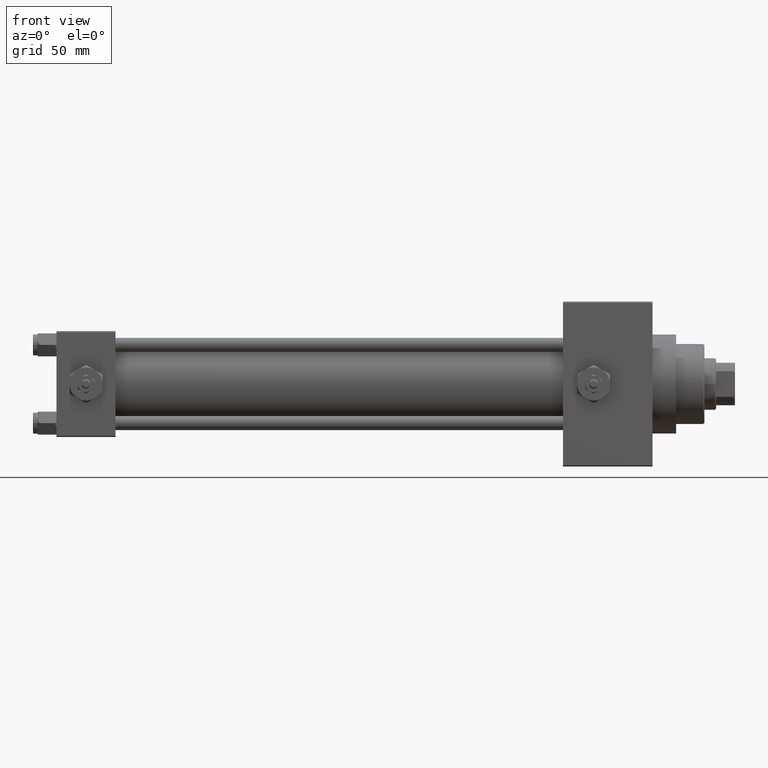
[diagram: clean part render]
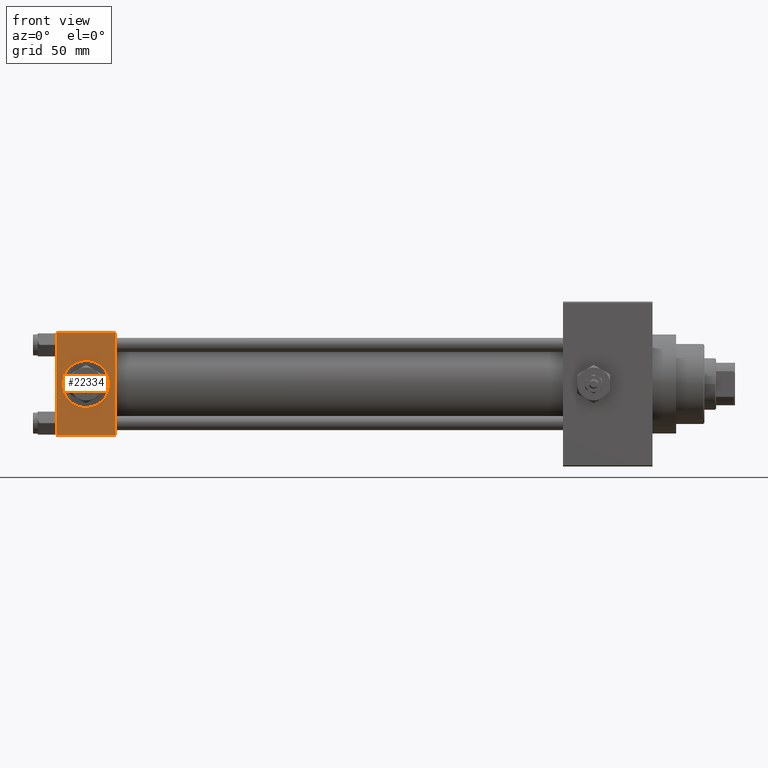
[diagram: same view with one face highlighted and labeled with its STEP entity id]
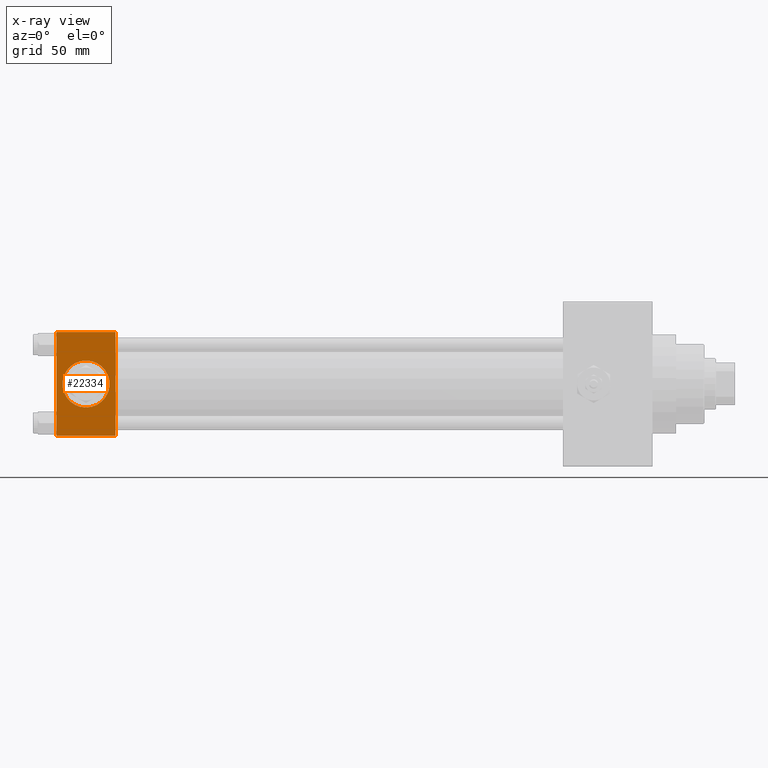
[diagram: x-ray of the same camera — body ghosted, the highlighted face saturated]
A machine part, front view. The second image highlights one B-rep face of the part: STEP entity #22334.
The next image is the same camera in x-ray: the body ghosted, the highlighted face saturated — about 0% of this face is hidden behind the body in this view.
In plain terms, the highlighted planar face has unit normal (0, 1, 0).
Its self-contained STEP definition (entity closure, byte-faithful):
#226 = DIRECTION ( 'NONE',  ( 0.000000000000000000, -1.000000000000000000, -8.673617379884036705E-17 ) ) ;
#834 = CARTESIAN_POINT ( 'NONE',  ( 0.000000000000000000, -22.50000000000000000, 22.00000000000000000 ) ) ;
#1727 = VECTOR ( 'NONE', #29714, 1000.000000000000000 ) ;
#3353 = AXIS2_PLACEMENT_3D ( 'NONE', #11284, #45309, #48279 ) ;
#3461 = DIRECTION ( 'NONE',  ( -1.000000000000000000, 0.000000000000000000, 0.000000000000000000 ) ) ;
#4487 = AXIS2_PLACEMENT_3D ( 'NONE', #7520, #29358, #22384 ) ;
#4924 = ORIENTED_EDGE ( 'NONE', *, *, #28466, .T. ) ;
#5412 = EDGE_LOOP ( 'NONE', ( #29977, #20588, #9239, #4924 ) ) ;
#7520 = CARTESIAN_POINT ( 'NONE',  ( 25.00000000000000000, -22.50000000000000000, 22.50000000000000000 ) ) ;
#9239 = ORIENTED_EDGE ( 'NONE', *, *, #14112, .F. ) ;
#9253 = VERTEX_POINT ( 'NONE', #45570 ) ;
#10691 = VECTOR ( 'NONE', #18306, 1000.000000000000000 ) ;
#11008 = VERTEX_POINT ( 'NONE', #46278 ) ;
#11284 = CARTESIAN_POINT ( 'NONE',  ( 12.50000000000000000, -22.50000000000000000, 0.000000000000000000 ) ) ;
#14112 = EDGE_CURVE ( 'NONE', #11008, #9253, #43410, .T. ) ;
#14341 = CARTESIAN_POINT ( 'NONE',  ( 0.000000000000000000, -22.50000000000000000, 22.50000000000000000 ) ) ;
#14350 = ORIENTED_EDGE ( 'NONE', *, *, #42655, .F. ) ;
#14558 = CARTESIAN_POINT ( 'NONE',  ( 25.00000000000000000, -22.50000000000000000, -21.99999999999998579 ) ) ;
#14583 = VERTEX_POINT ( 'NONE', #20190 ) ;
#15352 = EDGE_CURVE ( 'NONE', #32963, #41480, #48356, .T. ) ;
#16921 = EDGE_CURVE ( 'NONE', #38109, #14583, #32984, .T. ) ;
#17107 = AXIS2_PLACEMENT_3D ( 'NONE', #37940, #226, #45169 ) ;
#18306 = DIRECTION ( 'NONE',  ( 0.000000000000000000, 0.000000000000000000, -1.000000000000000000 ) ) ;
#20190 = CARTESIAN_POINT ( 'NONE',  ( 12.50000000000000178, -22.50000000000000000, 9.999999999999996447 ) ) ;
#20588 = ORIENTED_EDGE ( 'NONE', *, *, #41693, .T. ) ;
#22334 = ADVANCED_FACE ( 'NONE', ( #40786, #37039 ), #29601, .F. ) ;
#22384 = DIRECTION ( 'NONE',  ( 0.000000000000000000, -0.000000000000000000, 1.000000000000000000 ) ) ;
#23821 = ORIENTED_EDGE ( 'NONE', *, *, #16921, .F. ) ;
#24811 = CARTESIAN_POINT ( 'NONE',  ( 12.50000000000000000, -22.50000000000000000, -9.999999999999996447 ) ) ;
#26344 = CIRCLE ( 'NONE', #3353, 9.999999999999996447 ) ;
#27403 = CARTESIAN_POINT ( 'NONE',  ( 0.000000000000000000, -22.50000000000000000, -21.99999999999997158 ) ) ;
#28466 = EDGE_CURVE ( 'NONE', #11008, #32963, #41183, .T. ) ;
#28912 = VECTOR ( 'NONE', #34289, 1000.000000000000000 ) ;
#29358 = DIRECTION ( 'NONE',  ( -0.000000000000000000, 1.000000000000000000, 0.000000000000000000 ) ) ;
#29601 = PLANE ( 'NONE',  #4487 ) ;
#29714 = DIRECTION ( 'NONE',  ( 1.000000000000000000, 0.000000000000000000, 0.000000000000000000 ) ) ;
#29977 = ORIENTED_EDGE ( 'NONE', *, *, #15352, .T. ) ;
#31390 = EDGE_LOOP ( 'NONE', ( #23821, #14350 ) ) ;
#32963 = VERTEX_POINT ( 'NONE', #834 ) ;
#32984 = CIRCLE ( 'NONE', #17107, 9.999999999999996447 ) ;
#34289 = DIRECTION ( 'NONE',  ( 0.000000000000000000, 0.000000000000000000, -1.000000000000000000 ) ) ;
#36405 = VECTOR ( 'NONE', #3461, 1000.000000000000000 ) ;
#37039 = FACE_OUTER_BOUND ( 'NONE', #5412, .T. ) ;
#37446 = CARTESIAN_POINT ( 'NONE',  ( 25.00000000000000000, -22.50000000000000000, 22.00000000000000000 ) ) ;
#37940 = CARTESIAN_POINT ( 'NONE',  ( 12.50000000000000000, -22.50000000000000000, 0.000000000000000000 ) ) ;
#38011 = CARTESIAN_POINT ( 'NONE',  ( 25.00000000000000000, -22.50000000000000000, 22.50000000000000000 ) ) ;
#38109 = VERTEX_POINT ( 'NONE', #24811 ) ;
#40786 = FACE_BOUND ( 'NONE', #31390, .T. ) ;
#41183 = LINE ( 'NONE', #37446, #36405 ) ;
#41480 = VERTEX_POINT ( 'NONE', #27403 ) ;
#41693 = EDGE_CURVE ( 'NONE', #41480, #9253, #48570, .T. ) ;
#42655 = EDGE_CURVE ( 'NONE', #14583, #38109, #26344, .T. ) ;
#43410 = LINE ( 'NONE', #38011, #28912 ) ;
#45169 = DIRECTION ( 'NONE',  ( 0.000000000000000000, 0.000000000000000000, -1.000000000000000000 ) ) ;
#45309 = DIRECTION ( 'NONE',  ( 0.000000000000000000, -1.000000000000000000, -8.673617379884036705E-17 ) ) ;
#45570 = CARTESIAN_POINT ( 'NONE',  ( 25.00000000000000000, -22.50000000000000000, -21.99999999999997158 ) ) ;
#46278 = CARTESIAN_POINT ( 'NONE',  ( 25.00000000000000000, -22.50000000000000000, 22.00000000000000000 ) ) ;
#48279 = DIRECTION ( 'NONE',  ( 0.000000000000000000, 0.000000000000000000, -1.000000000000000000 ) ) ;
#48356 = LINE ( 'NONE', #14341, #10691 ) ;
#48570 = LINE ( 'NONE', #14558, #1727 ) ;